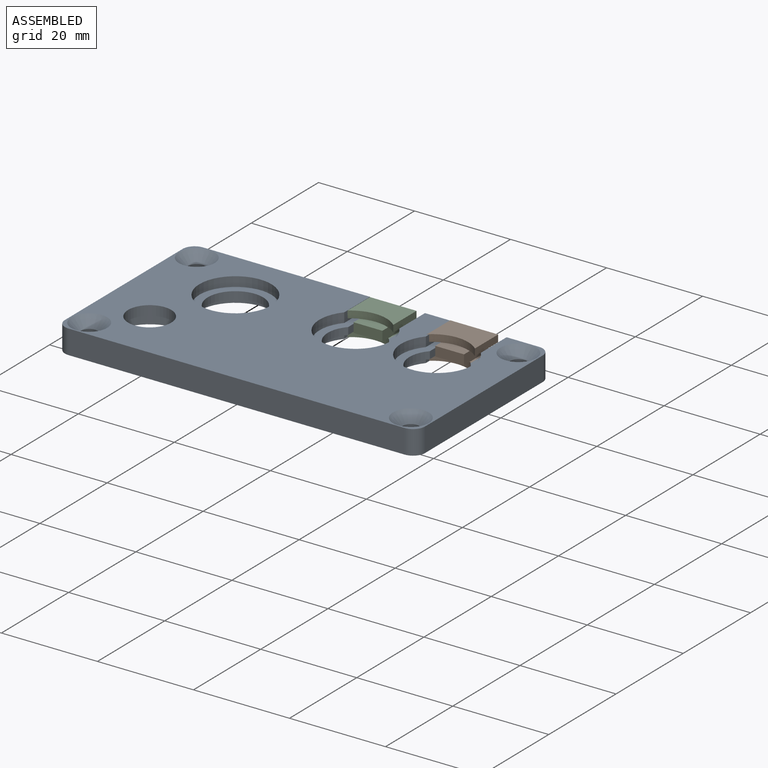
[diagram: assembled view]
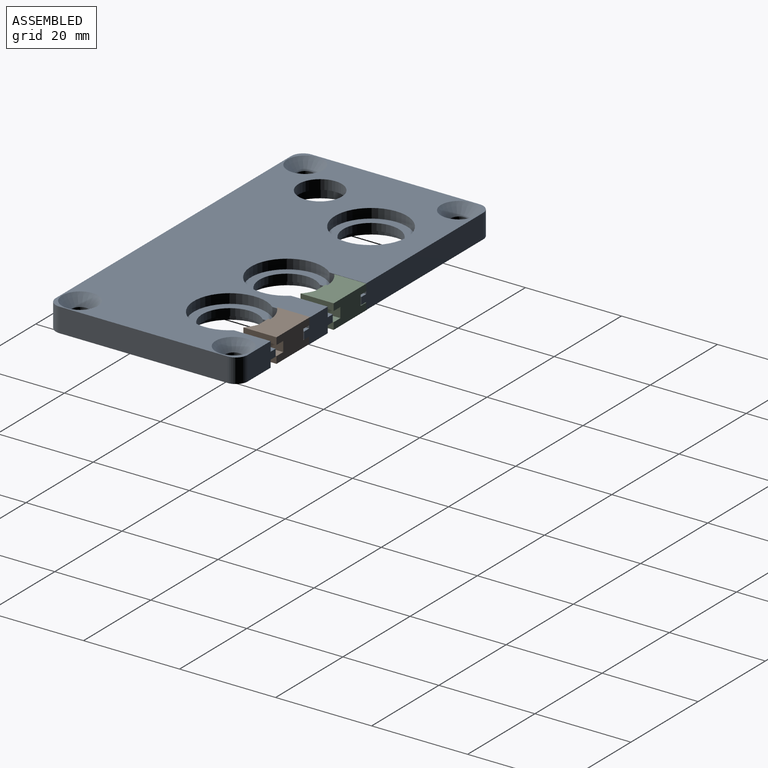
[diagram: assembled view, second angle]
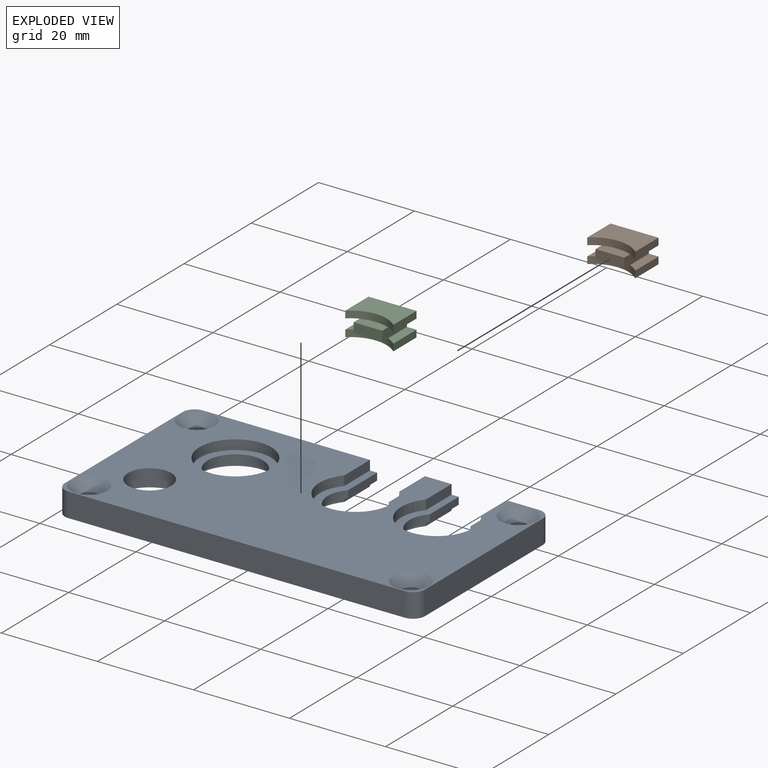
[diagram: exploded view]
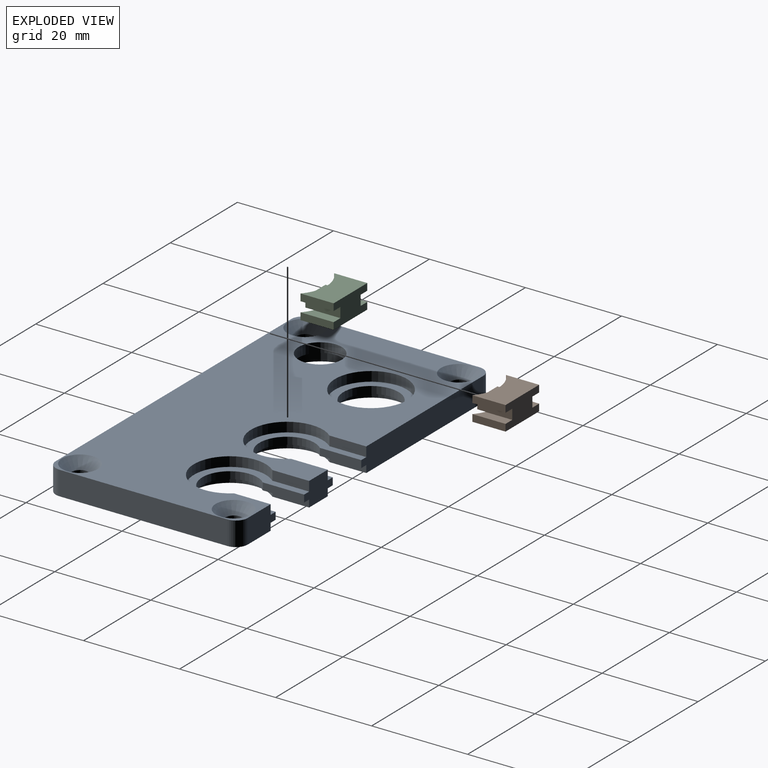
[diagram: exploded view, second angle]
ASSEMBLY  parts=3 mates=2
PART A: 50 faces, bbox 75x40x5 mm
  f0: cylinder r=4.5mm len=9mm, axis (0,0,1), area 56.5mm2, adj f10,f49
  f1: plane 7.66x1.5mm, normal (-1,0,0), area 11.5mm2, adj f6,f9,f33,f44
  f2: plane 7.66x1.5mm, normal (-1,0,0), area 11.5mm2, adj f7,f9,f35,f47
  f3: cylinder r=5.75mm len=11.5mm, axis (0,0,1), area 39.9mm2, adj f31,f35,f36,f37
  f4: cylinder r=5.75mm len=11.5mm, axis (0,0,1), area 39.9mm2, adj f28,f33,f38,f39
  f5: cylinder r=5.75mm len=11.5mm, axis (0,0,1), area 54.2mm2, adj f43,f46
  f6: plane 8.54x5mm, normal (0,1,0), area 32.2mm2, adj f1,f9,f10,f26,f28,f30,f31,f33
  f7: plane 8.27x5mm, normal (0,1,0), area 36.1mm2, adj f2,f9,f10,f17,f29,f31,f35,f37
  f8: plane 36.27x5mm, normal (0,1,0), area 176.1mm2, adj f9,f10,f11,f27,f28,f32,f33,f38
  f9: plane 75x40mm, normal (0,0,-1), area 2116.1mm2, adj f1,f2,f6,f7,f8,f11,f12,f13
  f10: plane 75x40mm, normal (0,0,1), area 2091mm2, adj f0,f6,f7,f8,f11,f12,f13,f14
  f11: cylinder r=2.5mm len=5mm, axis (0,0,1), area 19.6mm2, adj f8,f9,f10,f12
  f12: plane 35x5mm, normal (-1,0,0), area 175mm2, adj f9,f10,f11,f13
  f13: cylinder r=2.5mm len=5mm, axis (0,0,1), area 19.6mm2, adj f9,f10,f12,f14
  f14: plane 70x5mm, normal (0,-1,0), area 350mm2, adj f9,f10,f13,f15
  f15: cylinder r=2.5mm len=5mm, axis (0,0,1), area 19.6mm2, adj f9,f10,f14,f16
  f16: plane 35x5mm, normal (1,0,0), area 175mm2, adj f9,f10,f15,f17
  f17: cylinder r=2.5mm len=5mm, axis (0,0,1), area 19.6mm2, adj f7,f9,f10,f16
  f18: cylinder r=1.75mm len=3.5mm, axis (0,0,1), area 33mm2, adj f9,f25
  f19: cylinder r=1.75mm len=3.5mm, axis (0,0,1), area 33mm2, adj f9,f24
  f20: cylinder r=1.75mm len=3.5mm, axis (0,0,1), area 33mm2, adj f9,f23
  f21: cylinder r=1.75mm len=3.5mm, axis (0,0,1), area 33mm2, adj f9,f22
  f22: cone r=1.75mm half-angle=45deg, axis (0,0,1), area 48.9mm2, adj f10,f21
  f23: cone r=1.75mm half-angle=45deg, axis (0,0,1), area 48.9mm2, adj f10,f20
  f24: cone r=1.75mm half-angle=45deg, axis (0,0,1), area 48.9mm2, adj f10,f19
  f25: cone r=1.75mm half-angle=45deg, axis (0,0,1), area 48.9mm2, adj f10,f18
  f26: plane 7.66x2mm, normal (-1,0,0), area 15.3mm2, adj f6,f10,f28,f41
  f27: plane 7.66x2mm, normal (1,0,0), area 15.3mm2, adj f8,f10,f28,f41
  f28: plane 20x15mm, normal (0,0,1), area 77.5mm2, adj f4,f6,f8,f26,f27,f38,f39,f41
  f29: plane 7.66x2mm, normal (-1,0,0), area 15.3mm2, adj f7,f10,f31,f40
  f30: plane 7.66x2mm, normal (1,0,0), area 15.3mm2, adj f6,f10,f31,f40
  f31: plane 20x15mm, normal (0,0,1), area 77.5mm2, adj f3,f6,f7,f29,f30,f36,f37,f40
  f32: plane 7.66x1.5mm, normal (1,0,0), area 11.5mm2, adj f8,f9,f33,f44
  f33: plane 20x15mm, normal (0,0,-1), area 77.5mm2, adj f1,f4,f6,f8,f32,f38,f39,f44
  f34: plane 7.66x1.5mm, normal (1,0,0), area 11.5mm2, adj f6,f9,f35,f47
  f35: plane 20x15mm, normal (0,0,-1), area 77.5mm2, adj f2,f3,f6,f7,f34,f36,f37,f47
  f36: plane 8.6x1.5mm, normal (1,0,0), area 12.9mm2, adj f3,f6,f31,f35
  f37: plane 8.6x1.5mm, normal (-1,0,0), area 12.9mm2, adj f3,f7,f31,f35
  f38: plane 8.6x1.5mm, normal (1,0,0), area 12.9mm2, adj f4,f8,f28,f33
  f39: plane 8.6x1.5mm, normal (-1,0,0), area 12.9mm2, adj f4,f6,f28,f33
  f40: cylinder r=7.5mm len=15mm, axis (0,0,1), area 68.2mm2, adj f10,f29,f30,f31
  f41: cylinder r=7.5mm len=15mm, axis (0,0,1), area 68.2mm2, adj f10,f26,f27,f28
  f42: cylinder r=7.5mm len=15mm, axis (0,0,1), area 94.2mm2, adj f10,f43
  f43: plane 15x15mm, normal (0,0,1), area 72.8mm2, adj f5,f42
  f44: cylinder r=7.5mm len=15mm, axis (0,0,-1), area 51.1mm2, adj f1,f9,f32,f33
  f45: cylinder r=7.5mm len=15mm, axis (0,0,-1), area 70.7mm2, adj f9,f46
  f46: plane 15x15mm, normal (0,0,-1), area 72.8mm2, adj f5,f45
  f47: cylinder r=7.5mm len=15mm, axis (0,0,-1), area 51.1mm2, adj f2,f9,f34,f35
  f48: cylinder r=7.5mm len=15mm, axis (0,0,-1), area 141.4mm2, adj f9,f49
  f49: plane 15x15mm, normal (0,0,-1), area 113.1mm2, adj f0,f48
PART B: 18 faces, bbox 10x7.3x5 mm
  f0: plane 6x2mm, normal (0,-1,0), area 12mm2, adj f10,f13,f15,f17
  f1: plane 10x6.91mm, normal (0,0,-1), area 56mm2, adj f3,f5,f6,f16
  f2: plane 6.91x1.45mm, normal (1,0,0), area 10mm2, adj f3,f7,f12,f14
  f3: plane 10x5mm, normal (0,1,0), area 41.6mm2, adj f1,f2,f4,f5,f6,f7,f8,f9
  f4: plane 6.91x1.45mm, normal (-1,0,0), area 10mm2, adj f3,f7,f9,f14
  f5: plane 6.91x1.45mm, normal (1,0,0), area 10mm2, adj f1,f3,f11,f16
  f6: plane 6.91x1.45mm, normal (-1,0,0), area 10mm2, adj f1,f3,f8,f16
  f7: plane 10x6.91mm, normal (0,0,1), area 56mm2, adj f2,f3,f4,f14
  f8: plane 6.91x2mm, normal (0,0,1), area 12.4mm2, adj f3,f6,f10,f16
  f9: plane 6.91x2mm, normal (0,0,-1), area 12.4mm2, adj f3,f4,f10,f14
  f10: plane 7.3x2.1mm, normal (-1,0,0), area 15.2mm2, adj f0,f3,f8,f9,f14,f15,f16,f17
  f11: plane 6.91x2mm, normal (0,0,1), area 12.4mm2, adj f3,f5,f13,f16
  f12: plane 6.91x2mm, normal (0,0,-1), area 12.4mm2, adj f2,f3,f13,f14
  f13: plane 7.3x2.1mm, normal (1,0,0), area 15.2mm2, adj f0,f3,f11,f12,f14,f15,f16,f17
  f14: cylinder r=7.5mm len=10mm, axis (0,0,1), area 16.2mm2, adj f2,f4,f7,f9,f10,f12,f13,f15
  f15: plane 6x2.3mm, normal (0,0,1), area 12.6mm2, adj f0,f10,f13,f14
  f16: cylinder r=7.5mm len=10mm, axis (0,0,-1), area 16.2mm2, adj f1,f5,f6,f8,f10,f11,f13,f17
  f17: plane 6x2.3mm, normal (0,0,-1), area 12.6mm2, adj f0,f10,f13,f16
PART C: same geometry as B
PLACE A t=(-0.62,2.28,0)mm
PLACE B t=(20.85,18.63,0.05)mm
PLACE C t=(3.85,18.63,-0.05)mm
MATE fastened A.f8 <-> C.f3  axis (0,1,0) through (0.65,22.28,3)mm
MATE fastened B.f3 <-> A.f6  axis (0,1,0) through (17.85,22.28,1.5)mm
